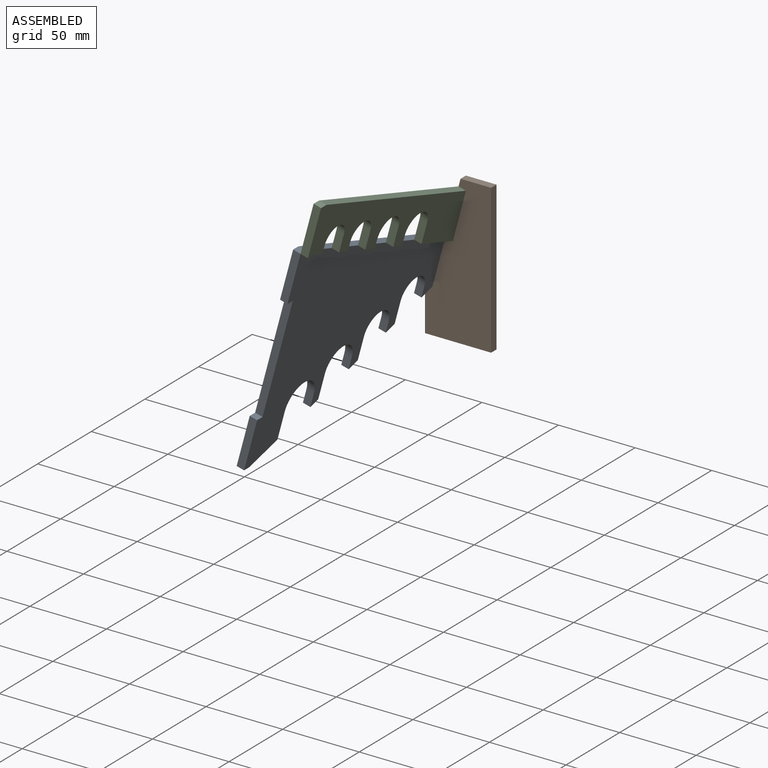
[diagram: assembled view]
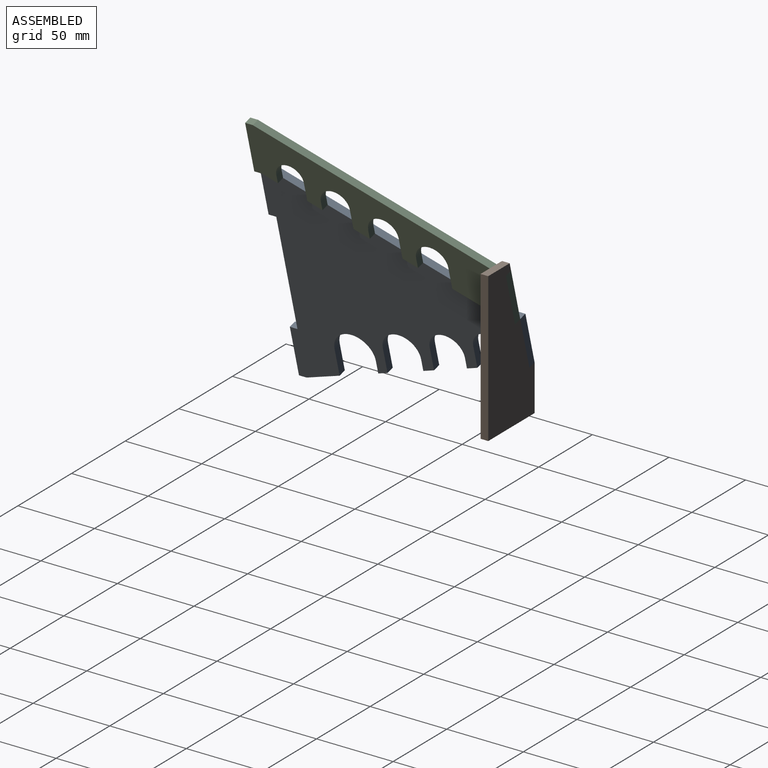
[diagram: assembled view, second angle]
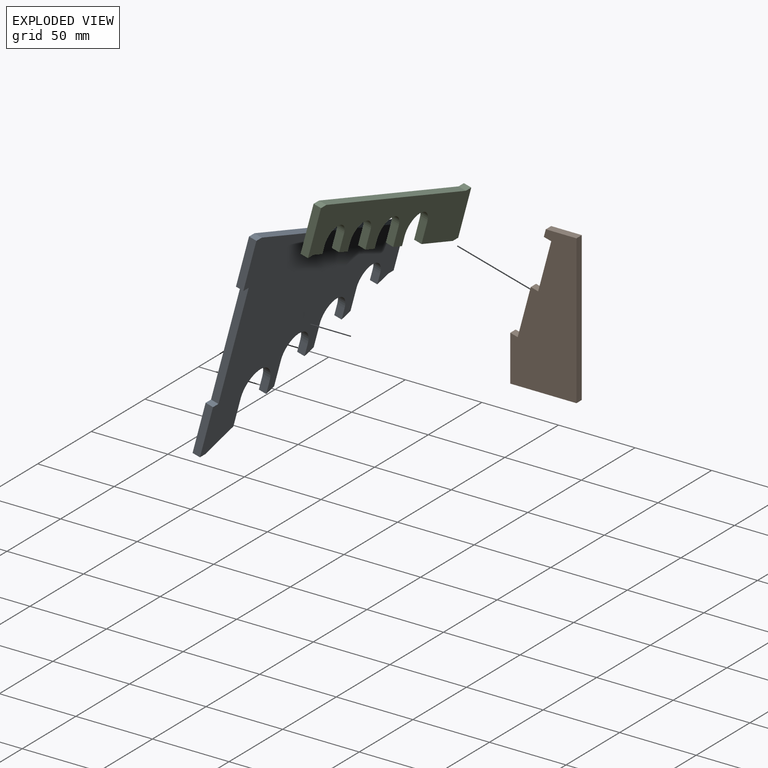
[diagram: exploded view]
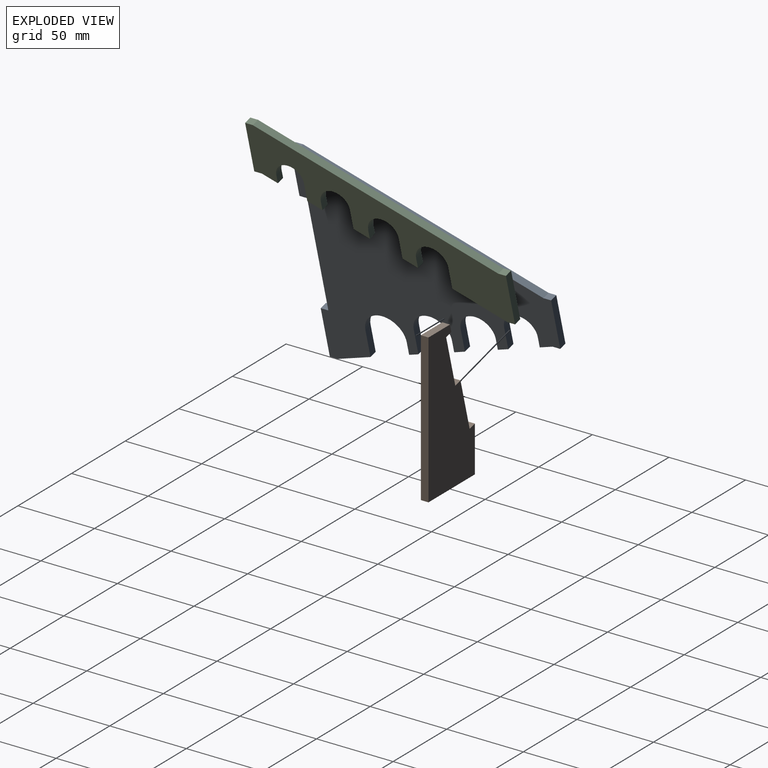
[diagram: exploded view, second angle]
ASSEMBLY  parts=3 mates=6
PART A: 30 faces, bbox 160.4x5x142.4 mm
  f0: plane 7x5mm, normal (1,0,0), area 35mm2, adj f1,f27,f28,f29
  f1: cylinder r=11mm len=22mm, axis (0,1,0), area 172.8mm2, adj f0,f2,f28,f29
  f2: plane 15x5mm, normal (-1,0,0), area 75mm2, adj f1,f3,f28,f29
  f3: plane 7.29x5mm, normal (-0.34,0,-0.94), area 38.8mm2, adj f2,f4,f28,f29
  f4: plane 7.31x5mm, normal (1,0,0), area 36.6mm2, adj f3,f5,f28,f29
  f5: cylinder r=11.5mm len=23mm, axis (0,1,0), area 180.6mm2, adj f4,f6,f28,f29
  f6: plane 15.69x5mm, normal (-1,0,0), area 78.4mm2, adj f5,f7,f28,f29
  f7: plane 7.5x5mm, normal (-0.34,0,-0.94), area 39.9mm2, adj f6,f8,f28,f29
  f8: plane 7.95x5mm, normal (1,0,0), area 39.8mm2, adj f7,f9,f28,f29
  f9: cylinder r=12.5mm len=25mm, axis (0,1,0), area 196.3mm2, adj f8,f10,f28,f29
  f10: plane 17.05x5mm, normal (-1,0,0), area 85.2mm2, adj f9,f11,f28,f29
  f11: plane 6.5x5mm, normal (-0.34,0,-0.94), area 34.6mm2, adj f10,f12,f28,f29
  f12: plane 8.59x5mm, normal (1,0,0), area 42.9mm2, adj f11,f13,f28,f29
  f13: cylinder r=13.5mm len=27mm, axis (0,1,0), area 212.1mm2, adj f12,f14,f28,f29
  f14: plane 18.41x5mm, normal (-1,0,0), area 92.1mm2, adj f13,f15,f28,f29
  f15: plane 23.06x8.39mm, normal (-0.34,0,-0.94), area 122.7mm2, adj f14,f16,f28,f29
  f16: plane 5x5mm, normal (0,0,-1), area 25mm2, adj f15,f17,f28,f29
  f17: plane 33x5mm, normal (1,0,0), area 165mm2, adj f16,f18,f28,f29
  f18: plane 5x5mm, normal (0,0,1), area 25mm2, adj f17,f19,f28,f29
  f19: plane 76.45x5mm, normal (1,0,0), area 382.2mm2, adj f18,f20,f28,f29
  f20: plane 5x5mm, normal (0,0,-1), area 25mm2, adj f19,f21,f28,f29
  f21: plane 33x5mm, normal (1,0,0), area 165mm2, adj f20,f22,f28,f29
  f22: plane 5x5mm, normal (0,0,1), area 25mm2, adj f21,f23,f28,f29
  f23: plane 150.35x54.72mm, normal (-0.34,0,0.94), area 800mm2, adj f22,f24,f28,f29
  f24: plane 5x5mm, normal (0,0,1), area 25mm2, adj f23,f25,f28,f29
  f25: plane 33x5mm, normal (-1,0,0), area 165mm2, adj f24,f26,f28,f29
  f26: plane 5x5mm, normal (0,0,-1), area 25mm2, adj f25,f27,f28,f29
  f27: plane 9x5mm, normal (-0.34,0,-0.94), area 47.9mm2, adj f0,f26,f28,f29
  f28: plane 160.35x142.45mm, normal (0,-1,0), area 11571.2mm2, adj f0,f1,f2,f3,f4,f5,f6,f7
  f29: plane 160.35x142.45mm, normal (0,1,0), area 11571.2mm2, adj f0,f1,f2,f3,f4,f5,f6,f7
PART B: 12 faces, bbox 43.2x5x97.3 mm
  f0: plane 31.88x8.54mm, normal (-0.97,0,0.26), area 165mm2, adj f1,f9,f10,f11
  f1: plane 5x4.83mm, normal (0.26,0,0.97), area 25mm2, adj f0,f2,f10,f11
  f2: plane 30x5mm, normal (-1,0,0), area 150mm2, adj f1,f3,f10,f11
  f3: plane 43.21x5mm, normal (0,0,-1), area 216mm2, adj f2,f4,f10,f11
  f4: plane 97.29x5mm, normal (1,0,0), area 486.4mm2, adj f3,f5,f10,f11
  f5: plane 20x5mm, normal (0,0,1), area 100mm2, adj f4,f6,f10,f11
  f6: plane 5x4.83mm, normal (-0.97,0,0.26), area 25mm2, adj f5,f7,f10,f11
  f7: plane 5x4.83mm, normal (-0.26,0,-0.97), area 25mm2, adj f6,f8,f10,f11
  f8: plane 31.88x8.54mm, normal (-0.97,0,0.26), area 165mm2, adj f7,f9,f10,f11
  f9: plane 5x4.83mm, normal (0.26,0,0.97), area 25mm2, adj f0,f8,f10,f11
  f10: plane 97.29x43.21mm, normal (0,-1,0), area 3080.1mm2, adj f0,f1,f2,f3,f4,f5,f6,f7
  f11: plane 97.29x43.21mm, normal (0,1,0), area 3080.1mm2, adj f0,f1,f2,f3,f4,f5,f6,f7
PART C: 27 faces, bbox 160.4x5x87.7 mm
  f0: plane 6.04x5mm, normal (-1,0,0), area 30.2mm2, adj f1,f24,f25,f26
  f1: plane 9.29x5mm, normal (0.34,0,-0.94), area 49.5mm2, adj f0,f2,f25,f26
  f2: plane 12.28x5mm, normal (1,0,0), area 61.4mm2, adj f1,f3,f25,f26
  f3: cylinder r=9mm len=18mm, axis (0,1,0), area 141.4mm2, adj f2,f4,f25,f26
  f4: plane 5.72x5mm, normal (-1,0,0), area 28.6mm2, adj f3,f5,f25,f26
  f5: plane 9.79x5mm, normal (0.34,0,-0.94), area 52.1mm2, adj f4,f6,f25,f26
  f6: plane 5x5mm, normal (0,0,-1), area 25mm2, adj f5,f7,f25,f26
  f7: plane 33x5mm, normal (1,0,0), area 165mm2, adj f6,f8,f25,f26
  f8: plane 5x5mm, normal (0,0,1), area 25mm2, adj f7,f9,f25,f26
  f9: plane 150.35x54.72mm, normal (-0.34,0,0.94), area 800mm2, adj f8,f10,f25,f26
  f10: plane 5x5mm, normal (0,0,1), area 25mm2, adj f9,f11,f25,f26
  f11: plane 33x5mm, normal (-1,0,0), area 165mm2, adj f10,f12,f25,f26
  f12: plane 5x5mm, normal (0,0,-1), area 25mm2, adj f11,f13,f25,f26
  f13: plane 33.76x12.29mm, normal (0.34,0,-0.94), area 179.6mm2, adj f12,f14,f25,f26
  f14: plane 14.32x5mm, normal (1,0,0), area 71.6mm2, adj f13,f15,f25,f26
  f15: cylinder r=10.5mm len=21mm, axis (0,1,0), area 164.9mm2, adj f14,f16,f25,f26
  f16: plane 6.68x5mm, normal (-1,0,0), area 33.4mm2, adj f15,f17,f25,f26
  f17: plane 9.5x5mm, normal (0.34,0,-0.94), area 50.5mm2, adj f16,f18,f25,f26
  f18: plane 13.64x5mm, normal (1,0,0), area 68.2mm2, adj f17,f19,f25,f26
  f19: cylinder r=9.93mm len=19.86mm, axis (0,1,0), area 156.7mm2, adj f18,f20,f25,f26
  f20: plane 5x0.14mm, normal (0,0,-1), area 0.7mm2, adj f19,f21,f25,f26
  f21: plane 6.36x5mm, normal (-1,0,0), area 31.8mm2, adj f20,f22,f25,f26
  f22: plane 10x5mm, normal (0.34,0,-0.94), area 53.2mm2, adj f21,f23,f25,f26
  f23: plane 12.96x5mm, normal (1,0,0), area 64.8mm2, adj f22,f24,f25,f26
  f24: cylinder r=9.5mm len=19mm, axis (0,1,0), area 149.2mm2, adj f0,f23,f25,f26
  f25: plane 160.35x87.72mm, normal (0,-1,0), area 3930.1mm2, adj f0,f1,f2,f3,f4,f5,f6,f7
  f26: plane 160.35x87.72mm, normal (0,1,0), area 3930.1mm2, adj f0,f1,f2,f3,f4,f5,f6,f7
PLACE A rot(axis=(-0.13,0.13,-0.98),91deg) t=(-76.39,344.52,-34.37)mm
PLACE B t=(-84.93,344.52,-66.25)mm
PLACE C rot(axis=(-0.13,0.13,-0.98),91deg) t=(-71.56,339.52,-35.67)mm
MATE planar B.f1 <-> A.f26  axis (0.26,0,0.97) through (-87.35,342.02,-65.6)mm
MATE planar C.f26 <-> B.f8  axis (0.97,0,-0.26) through (-59.83,267.43,8.12)mm
MATE planar C.f10 <-> B.f7  axis (0.26,0,0.97) through (-65.44,342.02,-3.14)mm
MATE planar B.f11 <-> C.f11  axis (0,1,0) through (-63.86,344.52,-54.61)mm
MATE planar A.f29 <-> B.f0  axis (0.97,0,-0.26) through (-79.17,244.94,-44.73)mm
MATE planar B.f11 <-> A.f25  axis (0,1,0) through (-63.86,344.52,-54.61)mm
